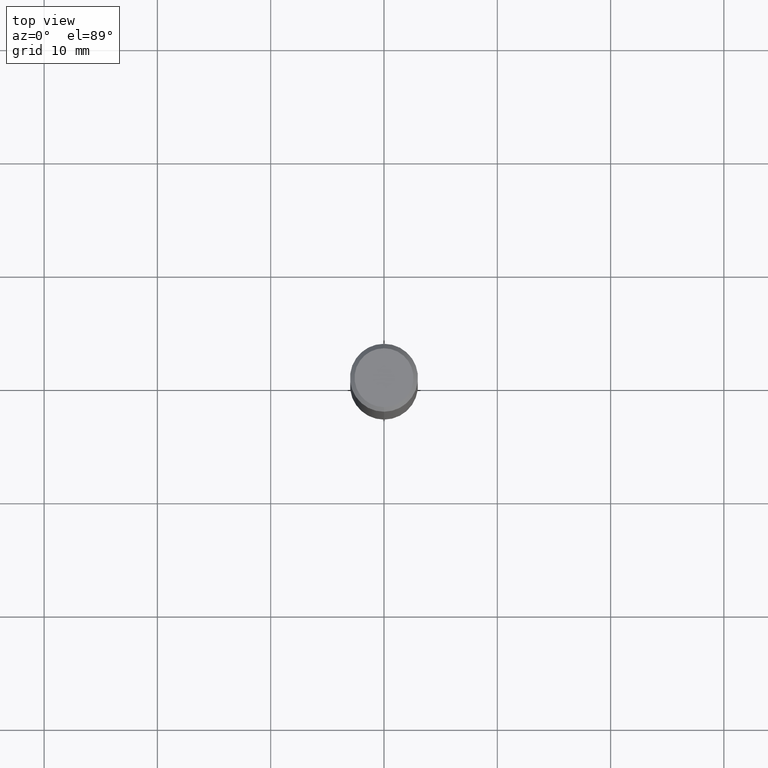
[diagram: clean part render]
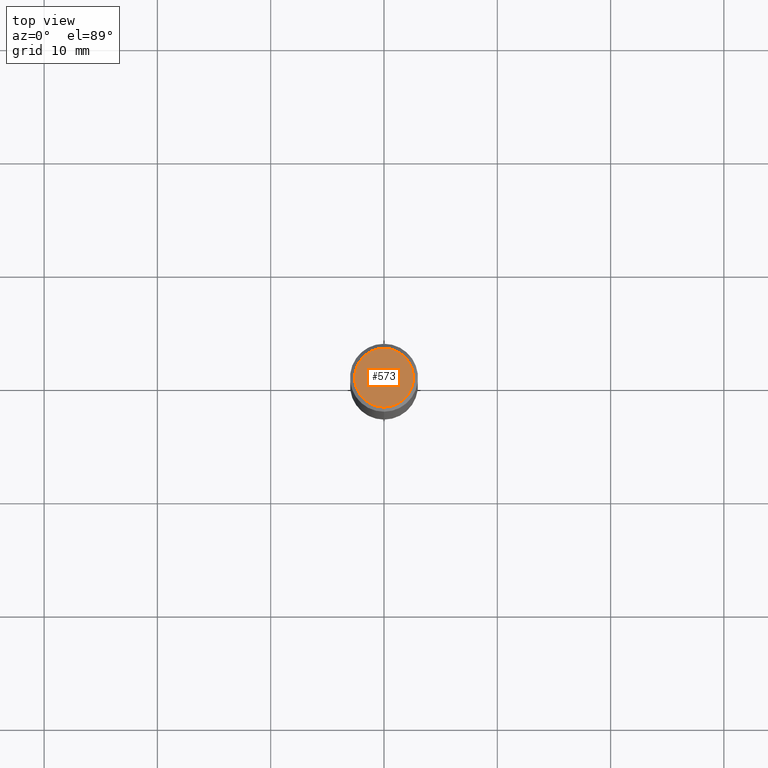
[diagram: same view with one face highlighted and labeled with its STEP entity id]
A machine part, top view. The second image highlights one B-rep face of the part: STEP entity #573.
In plain terms, the highlighted planar face has unit normal (-0, 0, 1).
Its self-contained STEP definition (entity closure, byte-faithful):
#573=ADVANCED_FACE('',(#1510),#1511,.T.);
#575=EDGE_CURVE('',#1381,#1125,#1513,.T.);
#759=EDGE_CURVE('',#1125,#1381,#1722,.T.);
#1125=VERTEX_POINT('',#2118);
#1381=VERTEX_POINT('',#2393);
#1510=FACE_OUTER_BOUND('',#3962,.T.);
#1511=PLANE('',#3963);
#1513=CIRCLE('',#3966,2.6);
#1722=CIRCLE('',#5596,2.6);
#2118=CARTESIAN_POINT('',(0.0,2.6,0.0));
#2393=CARTESIAN_POINT('',(3.18397651993818E-016,-2.6,0.0));
#3962=EDGE_LOOP('',(#13032,#13033));
#3963=AXIS2_PLACEMENT_3D('',#13034,#13035,#13036);
#3966=AXIS2_PLACEMENT_3D('',#13037,#13038,#13039);
#5596=AXIS2_PLACEMENT_3D('',#13290,#13291,#13292);
#13032=ORIENTED_EDGE('',*,*,#759,.F.);
#13033=ORIENTED_EDGE('',*,*,#575,.F.);
#13034=CARTESIAN_POINT('',(0.0,1.3,0.0));
#13035=DIRECTION('',(-0.0,0.0,1.0));
#13036=DIRECTION('',(0.0,-1.0,0.0));
#13037=CARTESIAN_POINT('',(0.0,0.0,0.0));
#13038=DIRECTION('',(0.0,0.0,-1.0));
#13039=DIRECTION('',(0.0,1.0,0.0));
#13290=CARTESIAN_POINT('',(0.0,0.0,0.0));
#13291=DIRECTION('',(0.0,0.0,-1.0));
#13292=DIRECTION('',(0.0,1.0,0.0));